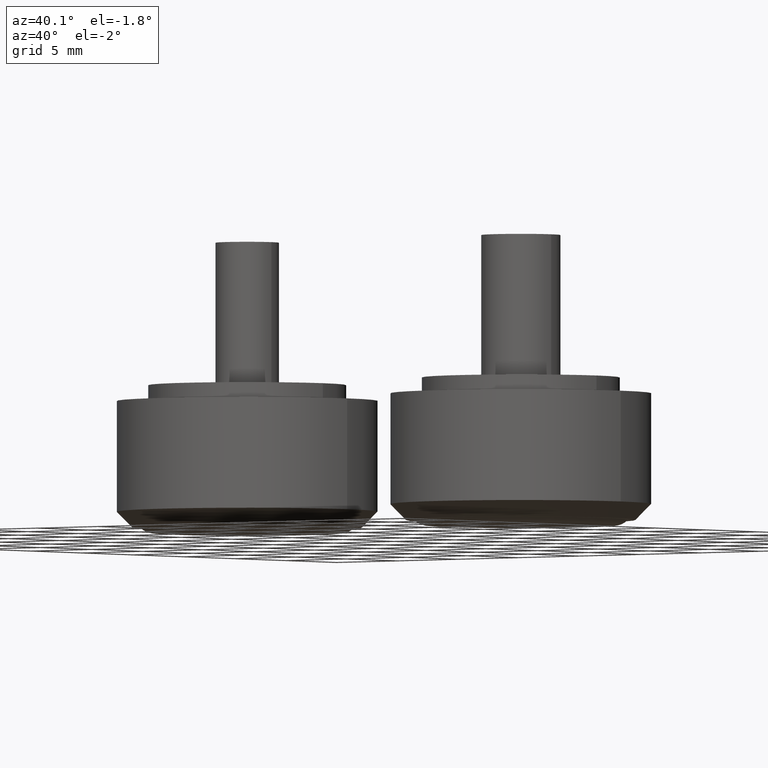
[diagram: clean part render]
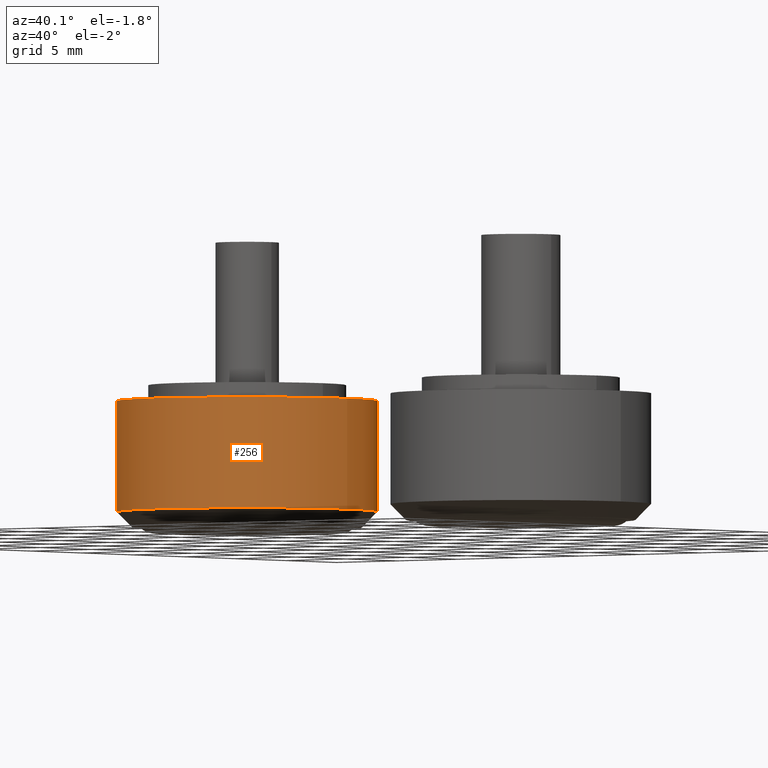
[diagram: same view with one face highlighted and labeled with its STEP entity id]
A machine part, auxiliary view. The second image highlights one B-rep face of the part: STEP entity #256.
In plain terms, the highlighted cylindrical surface (bore or boss wall) has radius 8.25 mm, axis along (0, 0, 1).
Its self-contained STEP definition (entity closure, byte-faithful):
#51=FACE_BOUND('',#103,.T.);
#72=FACE_OUTER_BOUND('',#102,.T.);
#102=EDGE_LOOP('',(#212));
#103=EDGE_LOOP('',(#213));
#140=CIRCLE('',#290,8.25);
#141=CIRCLE('',#292,8.25);
#162=VERTEX_POINT('',#450);
#163=VERTEX_POINT('',#453);
#184=EDGE_CURVE('',#162,#162,#140,.T.);
#185=EDGE_CURVE('',#163,#163,#141,.T.);
#212=ORIENTED_EDGE('',*,*,#185,.F.);
#213=ORIENTED_EDGE('',*,*,#184,.F.);
#244=CYLINDRICAL_SURFACE('',#291,8.25);
#256=ADVANCED_FACE('',(#72,#51),#244,.T.);
#290=AXIS2_PLACEMENT_3D('',#451,#356,#357);
#291=AXIS2_PLACEMENT_3D('',#452,#358,#359);
#292=AXIS2_PLACEMENT_3D('',#454,#360,#361);
#356=DIRECTION('center_axis',(0.,0.,-1.));
#357=DIRECTION('ref_axis',(-1.,0.,0.));
#358=DIRECTION('center_axis',(0.,0.,1.));
#359=DIRECTION('ref_axis',(-1.,0.,0.));
#360=DIRECTION('center_axis',(0.,0.,1.));
#361=DIRECTION('ref_axis',(-1.,0.,0.));
#450=CARTESIAN_POINT('',(8.25,-1.01033360929657E-15,1.));
#451=CARTESIAN_POINT('Origin',(0.,0.,1.));
#452=CARTESIAN_POINT('Origin',(0.,0.,0.));
#453=CARTESIAN_POINT('',(8.25,1.01033360929657E-15,8.));
#454=CARTESIAN_POINT('Origin',(0.,0.,8.));